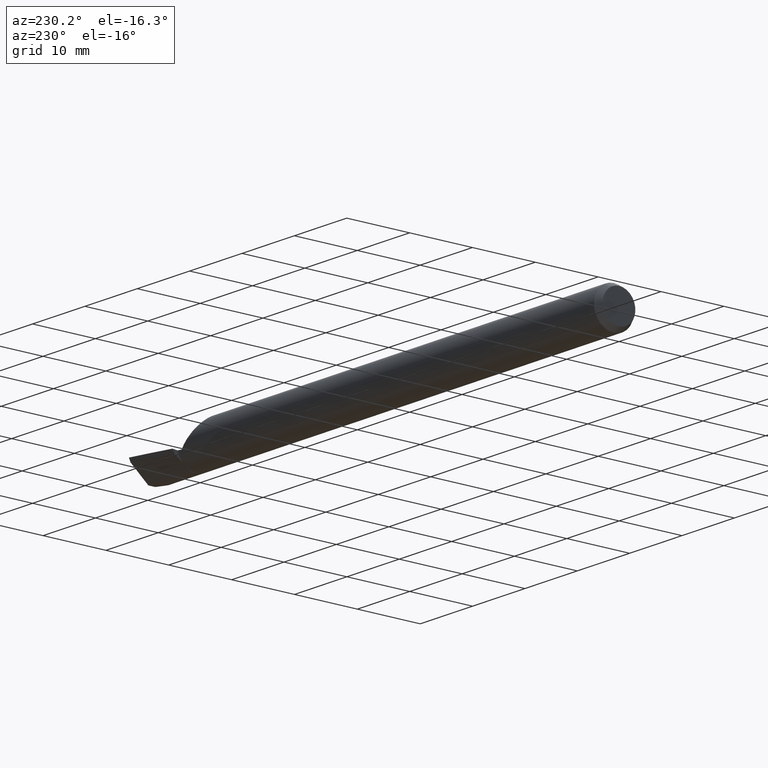
[diagram: clean part render]
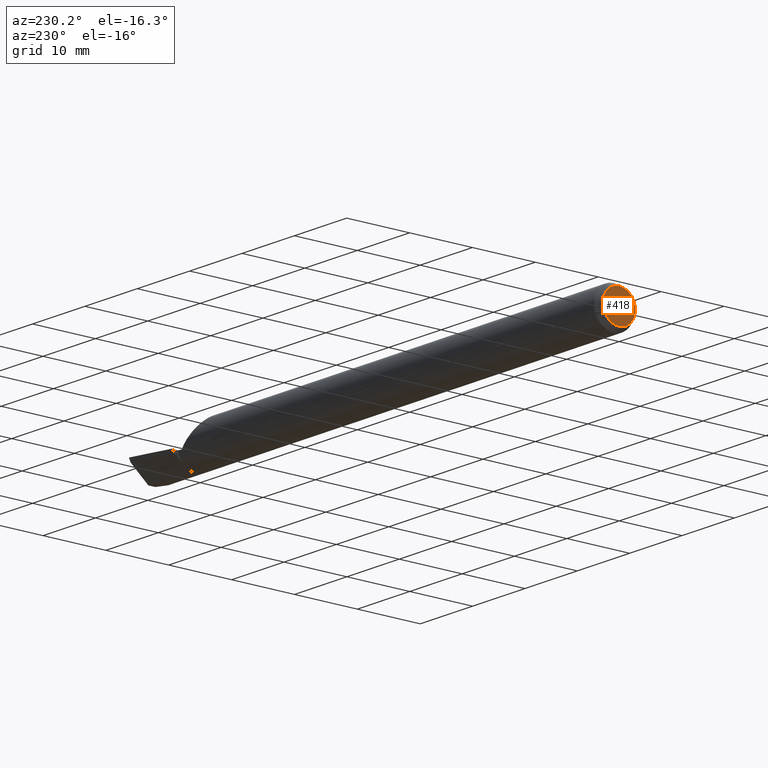
[diagram: same view with one face highlighted and labeled with its STEP entity id]
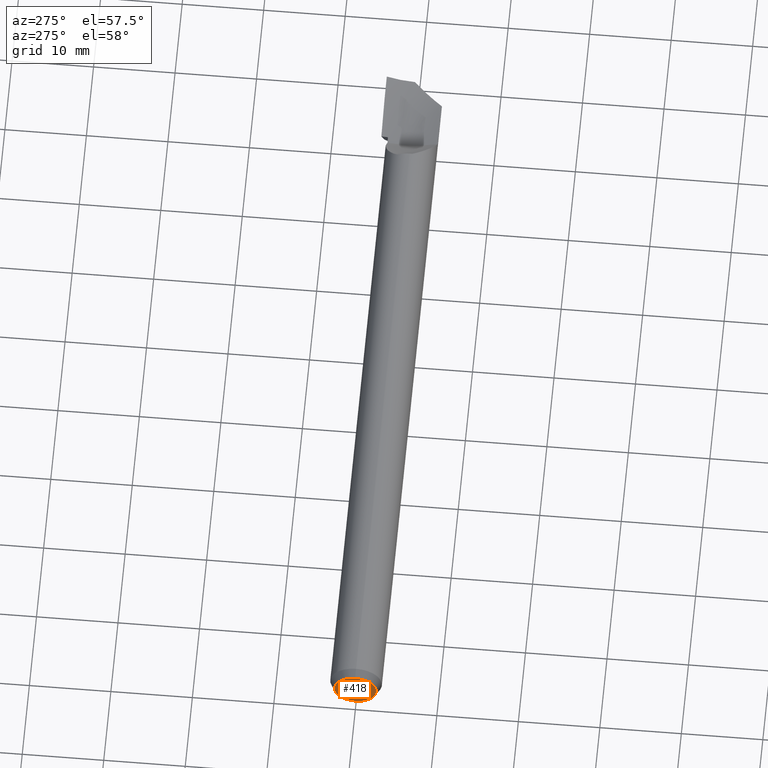
[diagram: same view with one face highlighted and labeled with its STEP entity id]
A machine part, auxiliary view. The second image highlights one B-rep face of the part: STEP entity #418.
A second angle (auxiliary view) of the same face is appended — the face is thin or edge-on in the first view.
In plain terms, the highlighted planar face has unit normal (1, 0, 0).
Its self-contained STEP definition (entity closure, byte-faithful):
#32 = AXIS2_PLACEMENT_3D ( 'NONE', #428, #185, #135 ) ;
#34 = DIRECTION ( 'NONE',  ( 0.000000000000000000, 0.000000000000000000, 1.000000000000000000 ) ) ;
#135 = DIRECTION ( 'NONE',  ( 0.000000000000000000, 0.000000000000000000, -1.000000000000000000 ) ) ;
#185 = DIRECTION ( 'NONE',  ( 1.000000000000000000, 0.000000000000000000, 0.000000000000000000 ) ) ;
#203 = EDGE_CURVE ( 'NONE', #342, #623, #214, .T. ) ;
#214 = CIRCLE ( 'NONE', #451, 0.1018059892324148924 ) ;
#252 = ORIENTED_EDGE ( 'NONE', *, *, #203, .T. ) ;
#296 = PLANE ( 'NONE',  #32 ) ;
#304 = CARTESIAN_POINT ( 'NONE',  ( 0.000000000000000000, 1.388173820305055888E-17, 0.1018059892324148924 ) ) ;
#305 = EDGE_LOOP ( 'NONE', ( #667, #252 ) ) ;
#342 = VERTEX_POINT ( 'NONE', #304 ) ;
#375 = CARTESIAN_POINT ( 'NONE',  ( 0.000000000000000000, 0.000000000000000000, 0.000000000000000000 ) ) ;
#418 = ADVANCED_FACE ( 'NONE', ( #575 ), #296, .F. ) ;
#428 = CARTESIAN_POINT ( 'NONE',  ( 0.000000000000000000, 0.000000000000000000, 0.000000000000000000 ) ) ;
#451 = AXIS2_PLACEMENT_3D ( 'NONE', #375, #594, #532 ) ;
#458 = EDGE_CURVE ( 'NONE', #623, #342, #537, .T. ) ;
#532 = DIRECTION ( 'NONE',  ( 0.000000000000000000, 0.000000000000000000, 1.000000000000000000 ) ) ;
#537 = CIRCLE ( 'NONE', #629, 0.1018059892324148924 ) ;
#564 = CARTESIAN_POINT ( 'NONE',  ( 0.000000000000000000, 0.000000000000000000, -0.1018059892324148924 ) ) ;
#575 = FACE_OUTER_BOUND ( 'NONE', #305, .T. ) ;
#594 = DIRECTION ( 'NONE',  ( -1.000000000000000000, -0.000000000000000000, -0.000000000000000000 ) ) ;
#623 = VERTEX_POINT ( 'NONE', #564 ) ;
#629 = AXIS2_PLACEMENT_3D ( 'NONE', #703, #647, #34 ) ;
#647 = DIRECTION ( 'NONE',  ( -1.000000000000000000, -0.000000000000000000, -0.000000000000000000 ) ) ;
#667 = ORIENTED_EDGE ( 'NONE', *, *, #458, .T. ) ;
#703 = CARTESIAN_POINT ( 'NONE',  ( 0.000000000000000000, 0.000000000000000000, 0.000000000000000000 ) ) ;